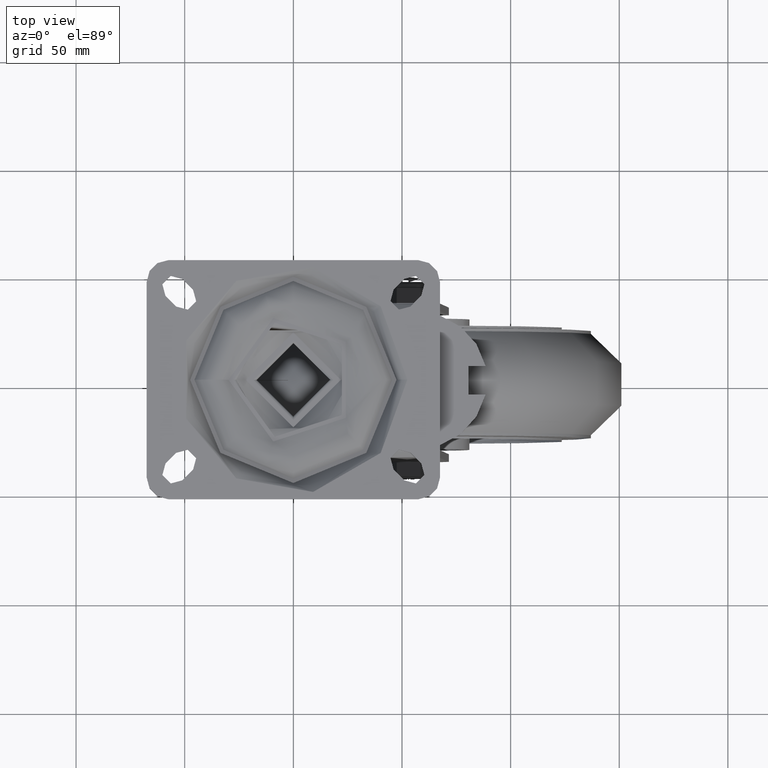
[diagram: clean part render]
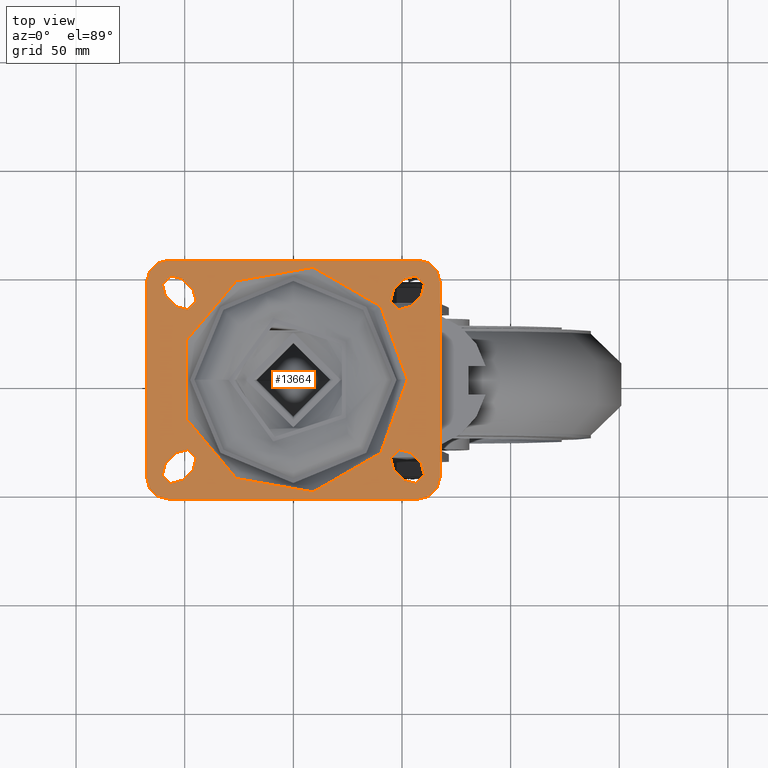
[diagram: same view with one face highlighted and labeled with its STEP entity id]
A machine part, top view. The second image highlights one B-rep face of the part: STEP entity #13664.
In plain terms, the highlighted planar face has unit normal (0, 0, 1).
Its self-contained STEP definition (entity closure, byte-faithful):
#744=FACE_BOUND('',#2837,.T.);
#745=FACE_BOUND('',#2838,.T.);
#746=FACE_BOUND('',#2839,.T.);
#747=FACE_BOUND('',#2840,.T.);
#748=FACE_BOUND('',#2841,.T.);
#931=PLANE('',#14781);
#2003=FACE_OUTER_BOUND('',#2836,.T.);
#2836=EDGE_LOOP('',(#9678,#9679,#9680,#9681,#9682,#9683,#9684,#9685));
#2837=EDGE_LOOP('',(#9686));
#2838=EDGE_LOOP('',(#9687,#9688,#9689,#9690));
#2839=EDGE_LOOP('',(#9691,#9692,#9693,#9694));
#2840=EDGE_LOOP('',(#9695,#9696,#9697,#9698));
#2841=EDGE_LOOP('',(#9699,#9700,#9701,#9702));
#3805=LINE('',#22127,#4636);
#3806=LINE('',#22128,#4637);
#3807=LINE('',#22129,#4638);
#3808=LINE('',#22130,#4639);
#3809=LINE('',#22131,#4640);
#3810=LINE('',#22132,#4641);
#3811=LINE('',#22133,#4642);
#3812=LINE('',#22134,#4643);
#3813=LINE('',#22135,#4644);
#3814=LINE('',#22136,#4645);
#3815=LINE('',#22137,#4646);
#3816=LINE('',#22138,#4647);
#4636=VECTOR('',#16269,1000.);
#4637=VECTOR('',#16270,1000.);
#4638=VECTOR('',#16271,1000.);
#4639=VECTOR('',#16272,1000.);
#4640=VECTOR('',#16273,1000.);
#4641=VECTOR('',#16274,1000.);
#4642=VECTOR('',#16275,1000.);
#4643=VECTOR('',#16276,1000.);
#4644=VECTOR('',#16277,1000.);
#4645=VECTOR('',#16278,1000.);
#4646=VECTOR('',#16279,1000.);
#4647=VECTOR('',#16280,1000.);
#5393=CIRCLE('',#14625,5.5);
#5396=CIRCLE('',#14629,5.5);
#5397=CIRCLE('',#14631,5.5);
#5400=CIRCLE('',#14635,5.5);
#5401=CIRCLE('',#14637,5.5);
#5404=CIRCLE('',#14641,5.5);
#5405=CIRCLE('',#14643,5.5);
#5408=CIRCLE('',#14647,5.5);
#5409=CIRCLE('',#14649,10.);
#5411=CIRCLE('',#14652,10.);
#5413=CIRCLE('',#14655,10.);
#5415=CIRCLE('',#14658,10.);
#5422=CIRCLE('',#14667,52.4937460888595);
#5927=VERTEX_POINT('',#19209);
#5928=VERTEX_POINT('',#19210);
#5933=VERTEX_POINT('',#19221);
#5934=VERTEX_POINT('',#19223);
#5935=VERTEX_POINT('',#19227);
#5936=VERTEX_POINT('',#19228);
#5941=VERTEX_POINT('',#19239);
#5942=VERTEX_POINT('',#19241);
#5943=VERTEX_POINT('',#19245);
#5944=VERTEX_POINT('',#19246);
#5949=VERTEX_POINT('',#19257);
#5950=VERTEX_POINT('',#19259);
#5951=VERTEX_POINT('',#19263);
#5952=VERTEX_POINT('',#19264);
#5957=VERTEX_POINT('',#19275);
#5958=VERTEX_POINT('',#19277);
#5959=VERTEX_POINT('',#19281);
#5960=VERTEX_POINT('',#19282);
#5963=VERTEX_POINT('',#19290);
#5964=VERTEX_POINT('',#19291);
#5967=VERTEX_POINT('',#19299);
#5968=VERTEX_POINT('',#19300);
#5971=VERTEX_POINT('',#19308);
#5972=VERTEX_POINT('',#19309);
#5978=VERTEX_POINT('',#19325);
#7286=EDGE_CURVE('',#5927,#5928,#5393,.T.);
#7292=EDGE_CURVE('',#5934,#5933,#5396,.T.);
#7294=EDGE_CURVE('',#5935,#5936,#5397,.T.);
#7300=EDGE_CURVE('',#5942,#5941,#5400,.T.);
#7302=EDGE_CURVE('',#5943,#5944,#5401,.T.);
#7308=EDGE_CURVE('',#5950,#5949,#5404,.T.);
#7310=EDGE_CURVE('',#5951,#5952,#5405,.T.);
#7316=EDGE_CURVE('',#5958,#5957,#5408,.T.);
#7318=EDGE_CURVE('',#5959,#5960,#5409,.F.);
#7322=EDGE_CURVE('',#5963,#5964,#5411,.F.);
#7326=EDGE_CURVE('',#5967,#5968,#5413,.F.);
#7330=EDGE_CURVE('',#5971,#5972,#5415,.F.);
#7339=EDGE_CURVE('',#5978,#5978,#5422,.T.);
#7485=EDGE_CURVE('',#5964,#5967,#3805,.F.);
#7486=EDGE_CURVE('',#5960,#5963,#3806,.F.);
#7487=EDGE_CURVE('',#5972,#5959,#3807,.F.);
#7488=EDGE_CURVE('',#5968,#5971,#3808,.F.);
#7489=EDGE_CURVE('',#5936,#5942,#3809,.T.);
#7490=EDGE_CURVE('',#5941,#5935,#3810,.T.);
#7491=EDGE_CURVE('',#5928,#5934,#3811,.T.);
#7492=EDGE_CURVE('',#5933,#5927,#3812,.T.);
#7493=EDGE_CURVE('',#5944,#5950,#3813,.T.);
#7494=EDGE_CURVE('',#5949,#5943,#3814,.T.);
#7495=EDGE_CURVE('',#5952,#5958,#3815,.T.);
#7496=EDGE_CURVE('',#5957,#5951,#3816,.T.);
#9678=ORIENTED_EDGE('',*,*,#7326,.F.);
#9679=ORIENTED_EDGE('',*,*,#7485,.F.);
#9680=ORIENTED_EDGE('',*,*,#7322,.F.);
#9681=ORIENTED_EDGE('',*,*,#7486,.F.);
#9682=ORIENTED_EDGE('',*,*,#7318,.F.);
#9683=ORIENTED_EDGE('',*,*,#7487,.F.);
#9684=ORIENTED_EDGE('',*,*,#7330,.F.);
#9685=ORIENTED_EDGE('',*,*,#7488,.F.);
#9686=ORIENTED_EDGE('',*,*,#7339,.F.);
#9687=ORIENTED_EDGE('',*,*,#7294,.T.);
#9688=ORIENTED_EDGE('',*,*,#7489,.T.);
#9689=ORIENTED_EDGE('',*,*,#7300,.T.);
#9690=ORIENTED_EDGE('',*,*,#7490,.T.);
#9691=ORIENTED_EDGE('',*,*,#7286,.T.);
#9692=ORIENTED_EDGE('',*,*,#7491,.T.);
#9693=ORIENTED_EDGE('',*,*,#7292,.T.);
#9694=ORIENTED_EDGE('',*,*,#7492,.T.);
#9695=ORIENTED_EDGE('',*,*,#7302,.T.);
#9696=ORIENTED_EDGE('',*,*,#7493,.T.);
#9697=ORIENTED_EDGE('',*,*,#7308,.T.);
#9698=ORIENTED_EDGE('',*,*,#7494,.T.);
#9699=ORIENTED_EDGE('',*,*,#7310,.T.);
#9700=ORIENTED_EDGE('',*,*,#7495,.T.);
#9701=ORIENTED_EDGE('',*,*,#7316,.T.);
#9702=ORIENTED_EDGE('',*,*,#7496,.T.);
#13664=ADVANCED_FACE('',(#2003,#744,#745,#746,#747,#748),#931,.T.);
#14625=AXIS2_PLACEMENT_3D('',#19211,#15881,#15882);
#14629=AXIS2_PLACEMENT_3D('',#19224,#15892,#15893);
#14631=AXIS2_PLACEMENT_3D('',#19229,#15897,#15898);
#14635=AXIS2_PLACEMENT_3D('',#19242,#15908,#15909);
#14637=AXIS2_PLACEMENT_3D('',#19247,#15913,#15914);
#14641=AXIS2_PLACEMENT_3D('',#19260,#15924,#15925);
#14643=AXIS2_PLACEMENT_3D('',#19265,#15929,#15930);
#14647=AXIS2_PLACEMENT_3D('',#19278,#15940,#15941);
#14649=AXIS2_PLACEMENT_3D('',#19283,#15945,#15946);
#14652=AXIS2_PLACEMENT_3D('',#19292,#15953,#15954);
#14655=AXIS2_PLACEMENT_3D('',#19301,#15961,#15962);
#14658=AXIS2_PLACEMENT_3D('',#19310,#15969,#15970);
#14667=AXIS2_PLACEMENT_3D('',#19327,#15989,#15990);
#14781=AXIS2_PLACEMENT_3D('',#22126,#16267,#16268);
#15881=DIRECTION('center_axis',(0.,0.,-1.));
#15882=DIRECTION('ref_axis',(1.,0.,0.));
#15892=DIRECTION('center_axis',(0.,0.,-1.));
#15893=DIRECTION('ref_axis',(1.,0.,0.));
#15897=DIRECTION('center_axis',(0.,0.,-1.));
#15898=DIRECTION('ref_axis',(1.,0.,0.));
#15908=DIRECTION('center_axis',(0.,0.,-1.));
#15909=DIRECTION('ref_axis',(1.,0.,0.));
#15913=DIRECTION('center_axis',(0.,0.,-1.));
#15914=DIRECTION('ref_axis',(-1.,0.,0.));
#15924=DIRECTION('center_axis',(0.,0.,-1.));
#15925=DIRECTION('ref_axis',(-1.,0.,0.));
#15929=DIRECTION('center_axis',(0.,0.,-1.));
#15930=DIRECTION('ref_axis',(-1.,0.,0.));
#15940=DIRECTION('center_axis',(0.,0.,-1.));
#15941=DIRECTION('ref_axis',(-1.,0.,0.));
#15945=DIRECTION('center_axis',(0.,0.,1.));
#15946=DIRECTION('ref_axis',(0.707106781186547,0.707106781186548,0.));
#15953=DIRECTION('center_axis',(0.,0.,1.));
#15954=DIRECTION('ref_axis',(0.707106781186547,-0.707106781186548,0.));
#15961=DIRECTION('center_axis',(0.,0.,1.));
#15962=DIRECTION('ref_axis',(-0.707106781186547,-0.707106781186548,0.));
#15969=DIRECTION('center_axis',(0.,0.,1.));
#15970=DIRECTION('ref_axis',(-0.707106781186547,0.707106781186548,0.));
#15989=DIRECTION('center_axis',(0.,0.,1.));
#15990=DIRECTION('ref_axis',(-1.,-9.91644751508222E-17,0.));
#16267=DIRECTION('center_axis',(0.,0.,1.));
#16268=DIRECTION('ref_axis',(1.,0.,0.));
#16269=DIRECTION('',(1.,0.,0.));
#16270=DIRECTION('',(0.,1.,0.));
#16271=DIRECTION('',(-1.,0.,0.));
#16272=DIRECTION('',(0.,-1.,0.));
#16273=DIRECTION('',(-0.707106781186548,-0.707106781186548,0.));
#16274=DIRECTION('',(0.707106781186548,0.707106781186548,0.));
#16275=DIRECTION('',(-0.707106781186548,0.707106781186548,0.));
#16276=DIRECTION('',(0.707106781186548,-0.707106781186548,0.));
#16277=DIRECTION('',(0.707106781186548,0.707106781186548,0.));
#16278=DIRECTION('',(-0.707106781186548,-0.707106781186548,0.));
#16279=DIRECTION('',(0.707106781186548,-0.707106781186548,0.));
#16280=DIRECTION('',(-0.707106781186548,0.707106781186548,0.));
#19209=CARTESIAN_POINT('',(-46.1360389693211,41.4142135623731,0.));
#19210=CARTESIAN_POINT('',(-53.9142135623731,33.6360389693211,0.));
#19211=CARTESIAN_POINT('Origin',(-50.0251262658471,37.5251262658471,0.));
#19221=CARTESIAN_POINT('',(-51.0857864376269,46.3639610306789,0.));
#19223=CARTESIAN_POINT('',(-58.8639610306789,38.5857864376269,0.));
#19224=CARTESIAN_POINT('Origin',(-54.9748737341529,42.4748737341529,0.));
#19227=CARTESIAN_POINT('',(-53.9142135623731,-33.6360389693211,0.));
#19228=CARTESIAN_POINT('',(-46.1360389693211,-41.4142135623731,0.));
#19229=CARTESIAN_POINT('Origin',(-50.0251262658471,-37.5251262658471,0.));
#19239=CARTESIAN_POINT('',(-58.8639610306789,-38.5857864376269,0.));
#19241=CARTESIAN_POINT('',(-51.0857864376269,-46.3639610306789,0.));
#19242=CARTESIAN_POINT('Origin',(-54.9748737341529,-42.4748737341529,0.));
#19245=CARTESIAN_POINT('',(53.9142135623731,33.6360389693211,0.));
#19246=CARTESIAN_POINT('',(46.1360389693211,41.4142135623731,0.));
#19247=CARTESIAN_POINT('Origin',(50.0251262658471,37.5251262658471,0.));
#19257=CARTESIAN_POINT('',(58.8639610306789,38.5857864376269,0.));
#19259=CARTESIAN_POINT('',(51.0857864376269,46.3639610306789,0.));
#19260=CARTESIAN_POINT('Origin',(54.9748737341529,42.4748737341529,0.));
#19263=CARTESIAN_POINT('',(46.1360389693211,-41.4142135623731,0.));
#19264=CARTESIAN_POINT('',(53.9142135623731,-33.6360389693211,0.));
#19265=CARTESIAN_POINT('Origin',(50.0251262658471,-37.5251262658471,0.));
#19275=CARTESIAN_POINT('',(51.0857864376269,-46.3639610306789,0.));
#19277=CARTESIAN_POINT('',(58.8639610306789,-38.5857864376269,0.));
#19278=CARTESIAN_POINT('Origin',(54.9748737341529,-42.4748737341529,0.));
#19281=CARTESIAN_POINT('',(57.5,55.,0.));
#19282=CARTESIAN_POINT('',(67.5,45.,0.));
#19283=CARTESIAN_POINT('Origin',(57.5,45.,0.));
#19290=CARTESIAN_POINT('',(67.5,-45.,0.));
#19291=CARTESIAN_POINT('',(57.5,-55.,0.));
#19292=CARTESIAN_POINT('Origin',(57.5,-45.,0.));
#19299=CARTESIAN_POINT('',(-57.5,-55.,0.));
#19300=CARTESIAN_POINT('',(-67.5,-45.,0.));
#19301=CARTESIAN_POINT('Origin',(-57.5,-45.,0.));
#19308=CARTESIAN_POINT('',(-67.5,45.,0.));
#19309=CARTESIAN_POINT('',(-57.5,55.,0.));
#19310=CARTESIAN_POINT('Origin',(-57.5,45.,0.));
#19325=CARTESIAN_POINT('',(52.4937460888595,1.16341445918998E-14,0.));
#19327=CARTESIAN_POINT('Origin',(0.,0.,0.));
#22126=CARTESIAN_POINT('Origin',(0.,0.,0.));
#22127=CARTESIAN_POINT('',(0.,-55.,0.));
#22128=CARTESIAN_POINT('',(67.5,0.,0.));
#22129=CARTESIAN_POINT('',(0.,55.,0.));
#22130=CARTESIAN_POINT('',(-67.5,0.,0.));
#22131=CARTESIAN_POINT('',(-25.485912703474,-20.764087296526,0.));
#22132=CARTESIAN_POINT('',(-33.264087296526,-12.985912703474,0.));
#22133=CARTESIAN_POINT('',(-33.264087296526,12.985912703474,0.));
#22134=CARTESIAN_POINT('',(-25.485912703474,20.764087296526,0.));
#22135=CARTESIAN_POINT('',(25.485912703474,20.764087296526,0.));
#22136=CARTESIAN_POINT('',(33.264087296526,12.985912703474,0.));
#22137=CARTESIAN_POINT('',(33.264087296526,-12.985912703474,0.));
#22138=CARTESIAN_POINT('',(25.485912703474,-20.764087296526,0.));